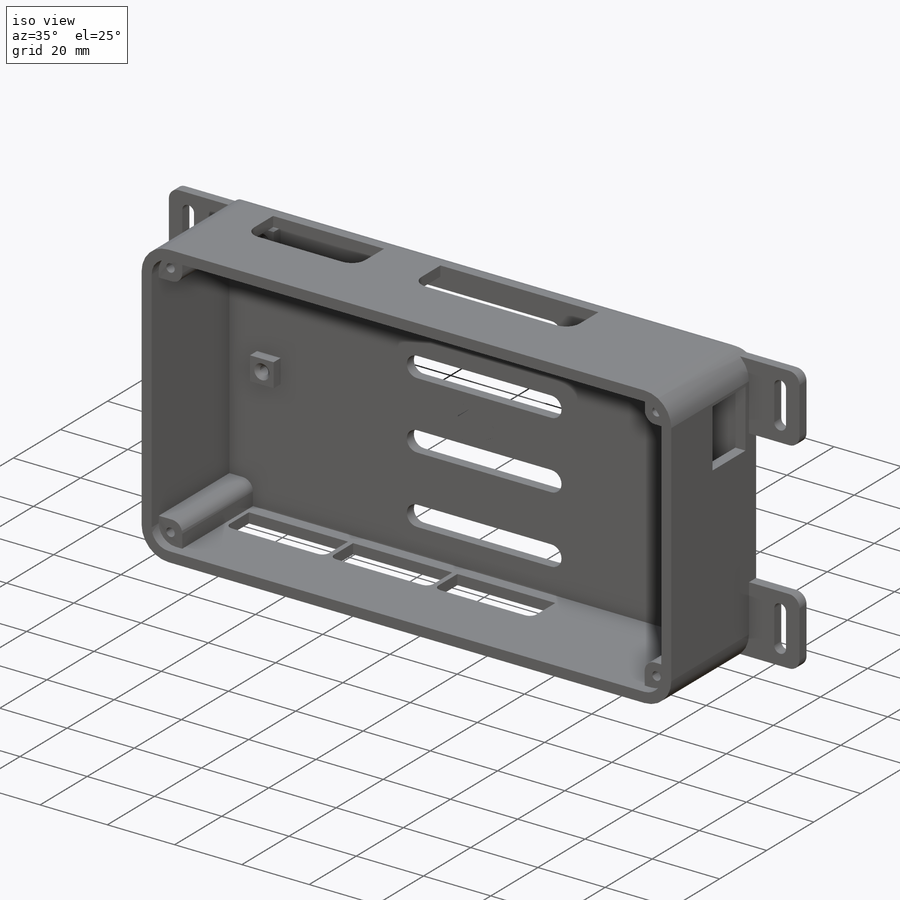
[diagram: iso view]
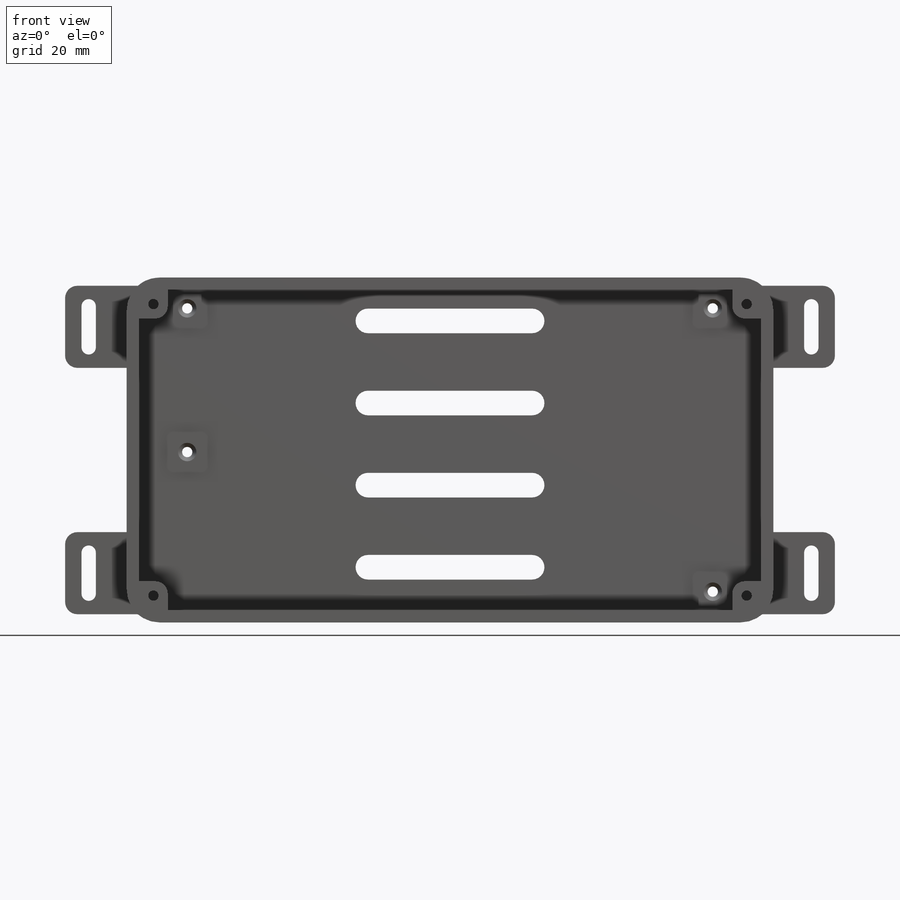
[diagram: front view]
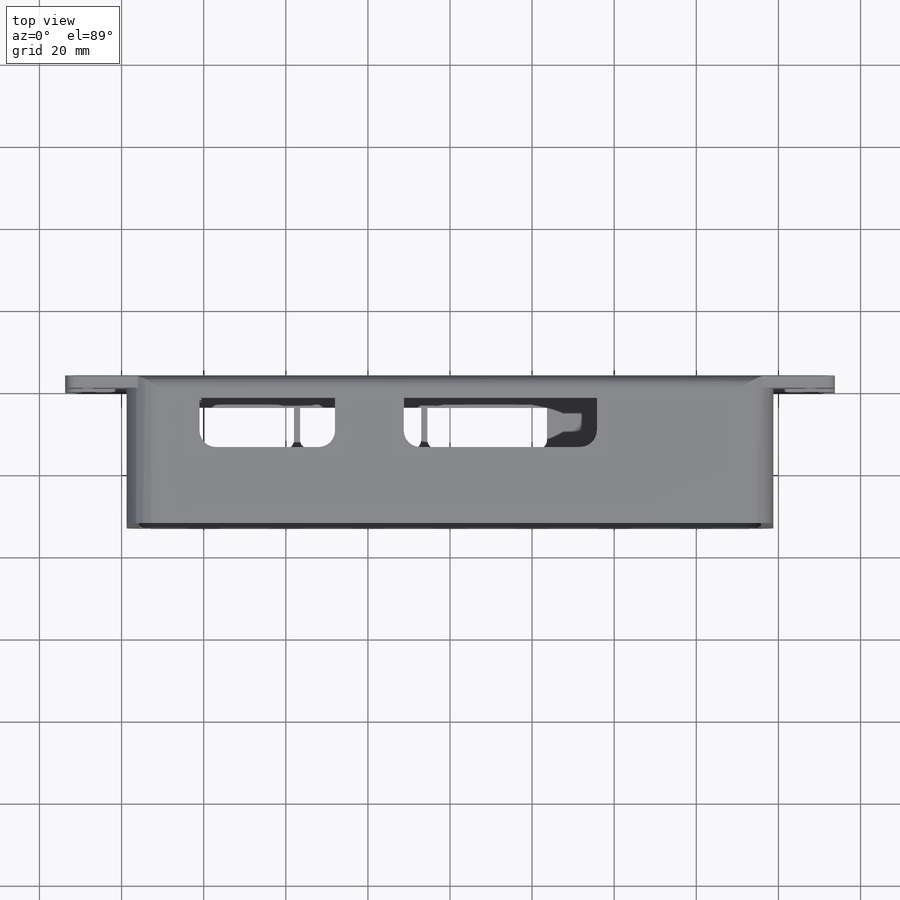
[diagram: top view]
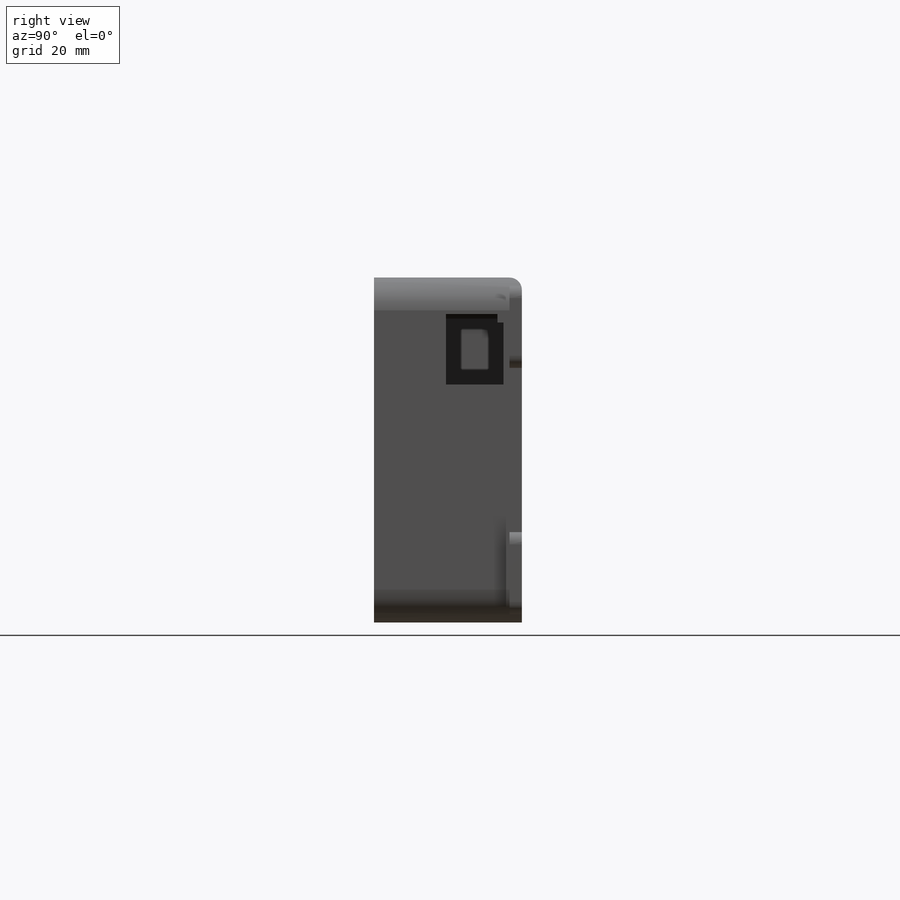
[diagram: right view]
SOLIDWORKS PART (.sldprt)
format: sldprt  version: not decoded by parser v0  size: 729,088 bytes
history: native  units: mm
features: sketch x10, extrude x5, cut_extrude x5, fillet x5, chamfer x4, plane x3, material x1 (+9 scaffold rows collapsed)
feature tree (42):
  scaffold x9  (default folders/planes/origin — collapsed)
  material  "ABS generico"
  plane  "Piano frontale"
  plane  "Piano superiore"
  plane  "Piano destro"
  sketch  "Schizzo2"  dims[c1.D9=2.5mm c1.D10=3.0mm c1.D1=78.0mm c1.D2=151.5mm c1.D3=7.0mm c1.D4=7.0mm c2.D9=78.0mm c2.D5=3.0mm c2.D6=3.0mm c2.D7=3.0mm c2.D8=3.0mm]
  extrude  "Estrusione-Estrusione1"  Depth=33mm
  extrude  "Estrusione-Estrusione2"  [1 undecoded]
  sketch  "Schizzo2<3>"  dims[D1=30.0mm]
  sketch  "Schizzo3"  dims[c1.D2=3.0mm c1.D6=3.0mm c1.D7=3.0mm c1.D10=3.0mm c2.D2=4.0mm c2.D3=31.0mm c2.D4=34.25mm c2.D5=60.25mm c2.D6=32.0mm c2.D7=~28.336567mm c2.D8=10.0mm c2.D9=10.0mm c2.D10=21.75mm c2.D11=45.0mm c2.D12=32.0mm c3.D11=44.0mm c3.D13=18.75mm c3.D1=33.0mm c3.D2=34.0mm c3.D3=17.75mm c3.D4=43.0mm c3.D5=29.75mm c3.D6=10.5mm c4.D2=~3.441153mm c4.D1=3.5mm c5.D2=8.0mm c5.D7=2.0mm c5.D8=2.0mm c5.D4=1.0mm c5.D5=1.0mm c6.D7=47.0mm]
  cut_extrude  "Taglio-Estrusione1"  [1 undecoded]
  sketch  "Schizzo4"  dims[c1.D2=~10.183688mm c1.D1=10.0mm c1.D3=1.5mm c2.D1=0.5mm c2.D2=2.0mm c2.D3=2.0mm c3.D1=1.0mm]
  cut_extrude  "Taglio-Estrusione2"  [1 undecoded]
  sketch  "Schizzo5"  dims[c1.D2=2.0mm c1.D1=~11.242268mm c2.D2=1.5mm c2.D1=14.0mm c3.D2=1.5mm c3.D3=17.0mm c3.D4=17.0mm c3.D5=17.0mm c3.D6=17.0mm c4.D3=15.5mm c4.D4=15.5mm c4.D5=15.5mm c4.D6=15.5mm c4.D7=15.5mm]
  sketch  "Schizzo6"  dims[c1.D5=~1.509472mm c1.D3=2.5mm c1.D4=2.5mm c1.D1=8.0mm c1.D2=8.0mm c2.D3=8.0mm c2.D4=8.0mm c2.D5=8.25mm c2.D1=7.0mm c2.D2=7.0mm c3.D3=34.5mm c3.D5=0.5mm c3.D6=64.0mm c3.D7=7.0mm c3.D8=7.0mm c3.D9=64.0mm c3.D10=34.5mm c3.D1=15.0mm c3.D2=15.0mm c4.D3=35.0mm]
  extrude  "Estrusione-Estrusione3"  Depth=3mm
  chamfer  "Smusso1"  Distance=1mm Angle=45deg
  chamfer  "Smusso2"  Distance=1mm Angle=45deg
  chamfer  "Smusso3"  Distance=1mm Angle=45deg
  chamfer  "Smusso4"  Distance=1mm Angle=45deg
  cut_extrude  "Taglio-Estrusione3"  [1 undecoded]
  sketch  "Schizzo7"
  extrude  "Estrusione-Estrusione4"  Depth=3mm
  sketch  "Schizzo8"
  cut_extrude  "Taglio-Estrusione4"  Depth=13mm
  sketch  "Schizzo9"  dims[c1.D5=~2.076356mm c1.D7=3.0mm c1.D8=3.0mm c1.D1=15.0mm c1.D2=20.0mm c2.D5=15.0mm c2.D6=20.0mm c2.D7=173.0mm c2.D1=30.0mm c2.D2=88.0mm c2.D3=10.0mm c2.D4=3.5mm c3.D5=15.0mm c3.D6=10.0mm c3.D3=5.0mm c3.D4=5.0mm]
  extrude  "Estrusione-Estrusione5"  Depth=3mm
  fillet  "Raccordo2"  Radius=8mm
  fillet  "Raccordo3"  Radius=5mm
  fillet  "Raccordo4"  Radius=5mm
  fillet  "Raccordo5"  Radius=8mm
  fillet  "Raccordo8"  Radius=3mm
  sketch  "Schizzo10"  dims[D1=6.0mm D2=40.0mm D3=4.0]
  cut_extrude  "Taglio-Estrusione5"  Depth=10mm
decode coverage: 23 of 29 modeling features carry decoded parameters
note: ~ marks probable driven/reference dimensions
note: 4 parameter values undecoded
summary: no parameter record found for 4 features
note: suppression state not decoded; provenance and decode notes live in map.json
